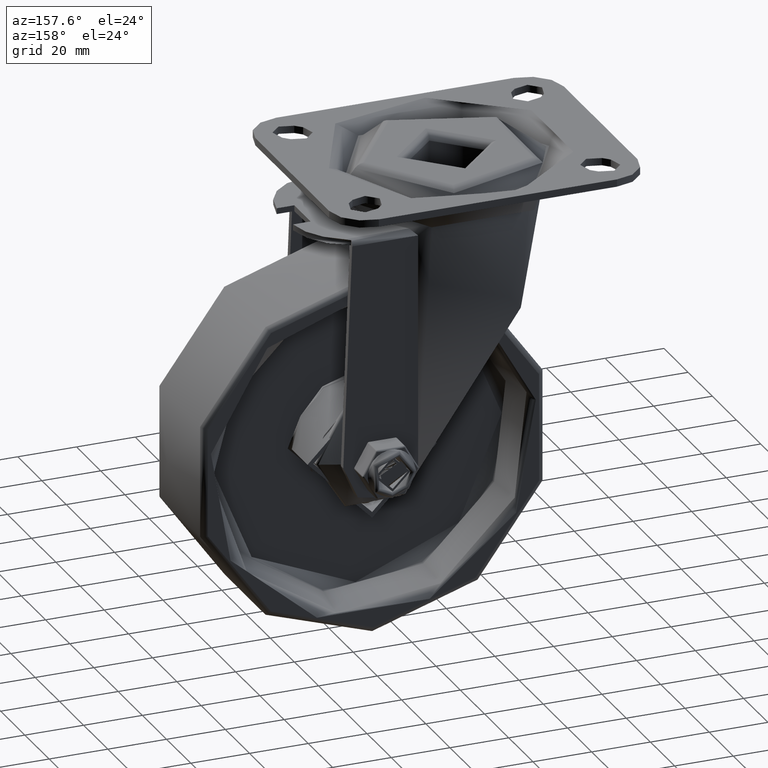
[diagram: clean part render]
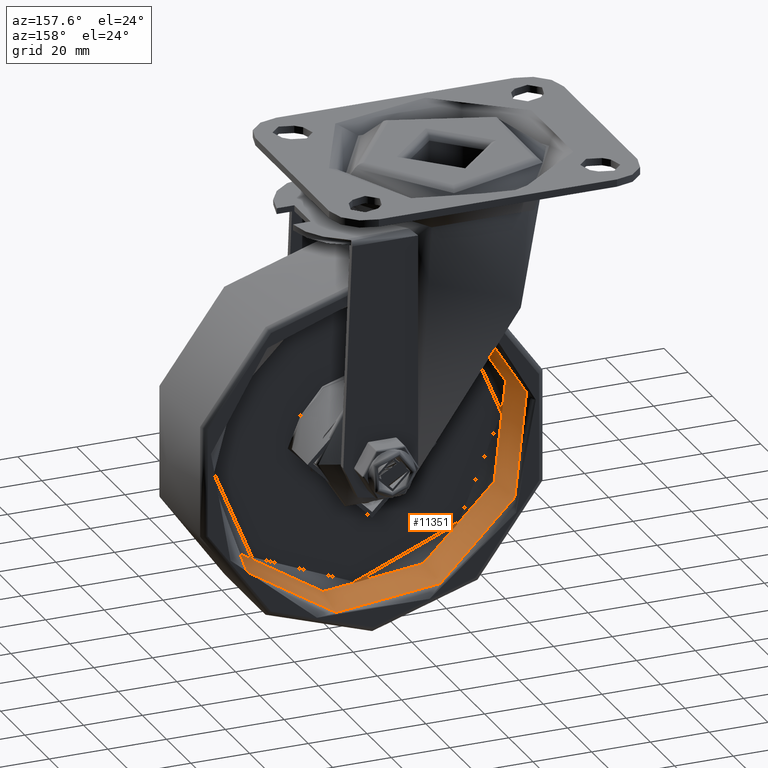
[diagram: same view with one face highlighted and labeled with its STEP entity id]
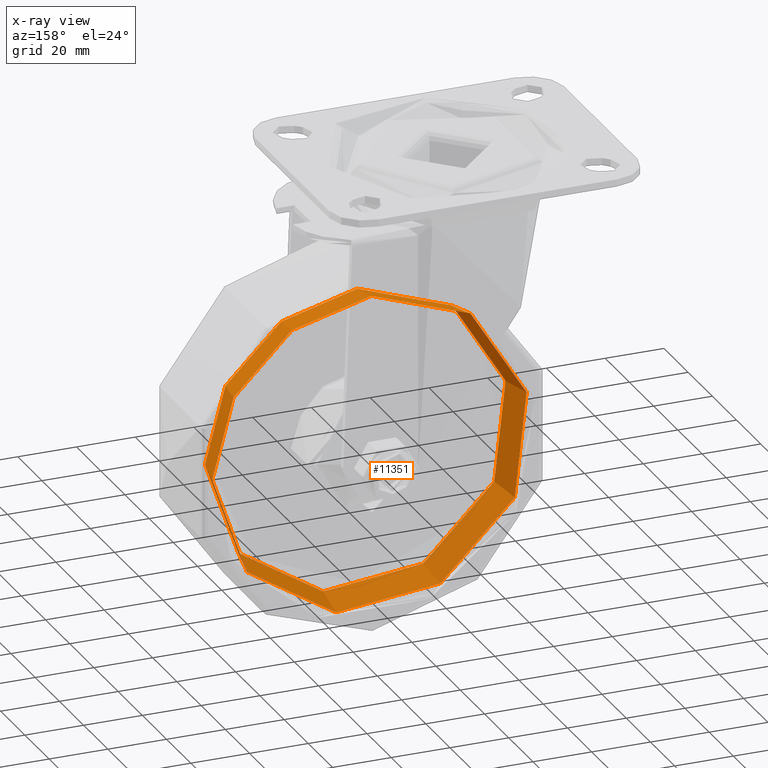
[diagram: x-ray of the same camera — body ghosted, the highlighted face saturated]
A machine part, auxiliary view. The second image highlights one B-rep face of the part: STEP entity #11351.
The next image is the same camera in x-ray: the body ghosted, the highlighted face saturated — about 1% of this face is hidden behind the body in this view.
In plain terms, the highlighted conical surface has half-angle 11.31 deg.
Its self-contained STEP definition (entity closure, byte-faithful):
#1376=CONICAL_SURFACE('',#12345,53.,0.19739555984988);
#1537=FACE_OUTER_BOUND('',#2263,.T.);
#2263=EDGE_LOOP('',(#8318,#8319,#8320,#8321,#8322,#8323));
#3117=LINE('',#17225,#3859);
#3859=VECTOR('',#13766,53.);
#4517=CIRCLE('',#12287,54.1784464540553);
#4518=CIRCLE('',#12288,54.1784464540553);
#4558=CIRCLE('',#12343,51.8215535459447);
#4559=CIRCLE('',#12344,51.8215535459447);
#5050=VERTEX_POINT('',#17097);
#5051=VERTEX_POINT('',#17098);
#5082=VERTEX_POINT('',#17219);
#5083=VERTEX_POINT('',#17221);
#6264=EDGE_CURVE('',#5050,#5051,#4517,.T.);
#6265=EDGE_CURVE('',#5051,#5050,#4518,.T.);
#6313=EDGE_CURVE('',#5082,#5083,#4558,.T.);
#6314=EDGE_CURVE('',#5083,#5082,#4559,.T.);
#6315=EDGE_CURVE('',#5083,#5050,#3117,.T.);
#8318=ORIENTED_EDGE('',*,*,#6314,.F.);
#8319=ORIENTED_EDGE('',*,*,#6315,.T.);
#8320=ORIENTED_EDGE('',*,*,#6264,.T.);
#8321=ORIENTED_EDGE('',*,*,#6265,.T.);
#8322=ORIENTED_EDGE('',*,*,#6315,.F.);
#8323=ORIENTED_EDGE('',*,*,#6313,.F.);
#11351=ADVANCED_FACE('',(#1537),#1376,.F.);
#12287=AXIS2_PLACEMENT_3D('',#17099,#13640,#13641);
#12288=AXIS2_PLACEMENT_3D('',#17100,#13642,#13643);
#12343=AXIS2_PLACEMENT_3D('',#17222,#13760,#13761);
#12344=AXIS2_PLACEMENT_3D('',#17223,#13762,#13763);
#12345=AXIS2_PLACEMENT_3D('',#17224,#13764,#13765);
#13640=DIRECTION('center_axis',(-3.71352796603441E-15,1.,0.));
#13641=DIRECTION('ref_axis',(-1.,-3.71352796603441E-15,0.));
#13642=DIRECTION('center_axis',(-3.71352796603441E-15,1.,0.));
#13643=DIRECTION('ref_axis',(-1.,-3.71352796603441E-15,0.));
#13760=DIRECTION('center_axis',(-3.71352796603441E-15,1.,0.));
#13761=DIRECTION('ref_axis',(-1.,-3.71352796603441E-15,0.));
#13762=DIRECTION('center_axis',(-3.71352796603441E-15,1.,0.));
#13763=DIRECTION('ref_axis',(-1.,-3.71352796603441E-15,0.));
#13764=DIRECTION('center_axis',(-3.71352796603441E-15,1.,0.));
#13765=DIRECTION('ref_axis',(-1.,-3.71352796603441E-15,0.));
#13766=DIRECTION('',(0.19611613513818,0.980580675690921,-2.40172997158126E-17));
#17097=CARTESIAN_POINT('',(54.1784464540552,16.8922322702766,6.6349461032735E-15));
#17098=CARTESIAN_POINT('',(-4.56864899852856E-14,16.8922322702763,54.1784464540553));
#17099=CARTESIAN_POINT('Origin',(-5.23214360885594E-14,16.8922322702763,
0.));
#17100=CARTESIAN_POINT('Origin',(-5.23214360885594E-14,16.8922322702763,
0.));
#17219=CARTESIAN_POINT('',(-2.2131874847875E-15,5.10776772972363,51.8215535459447));
#17221=CARTESIAN_POINT('',(51.8215535459447,5.10776772972382,6.34630996768844E-15));
#17222=CARTESIAN_POINT('Origin',(-8.55949745247597E-15,5.10776772972363,
0.));
#17223=CARTESIAN_POINT('Origin',(-8.55949745247597E-15,5.10776772972363,
0.));
#17224=CARTESIAN_POINT('Origin',(-3.04404667705177E-14,11.,0.));
#17225=CARTESIAN_POINT('',(53.,11.0000000000002,-6.49062803548097E-15));